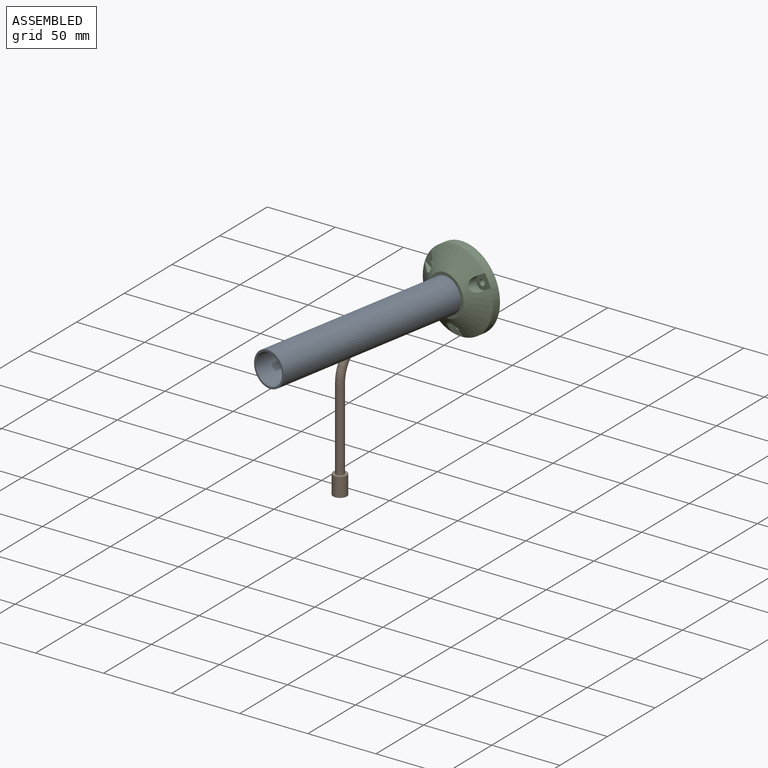
[diagram: assembled view]
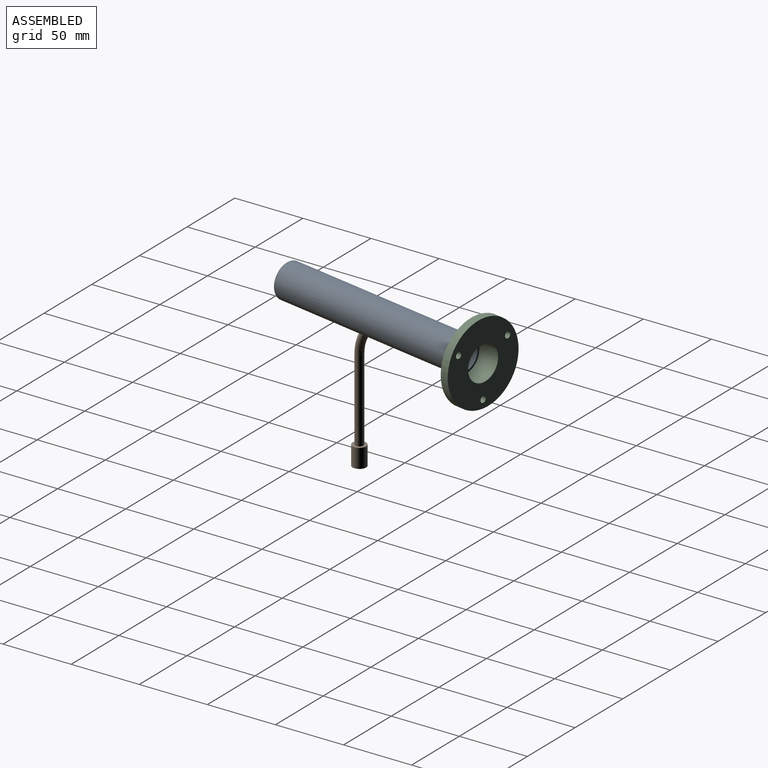
[diagram: assembled view, second angle]
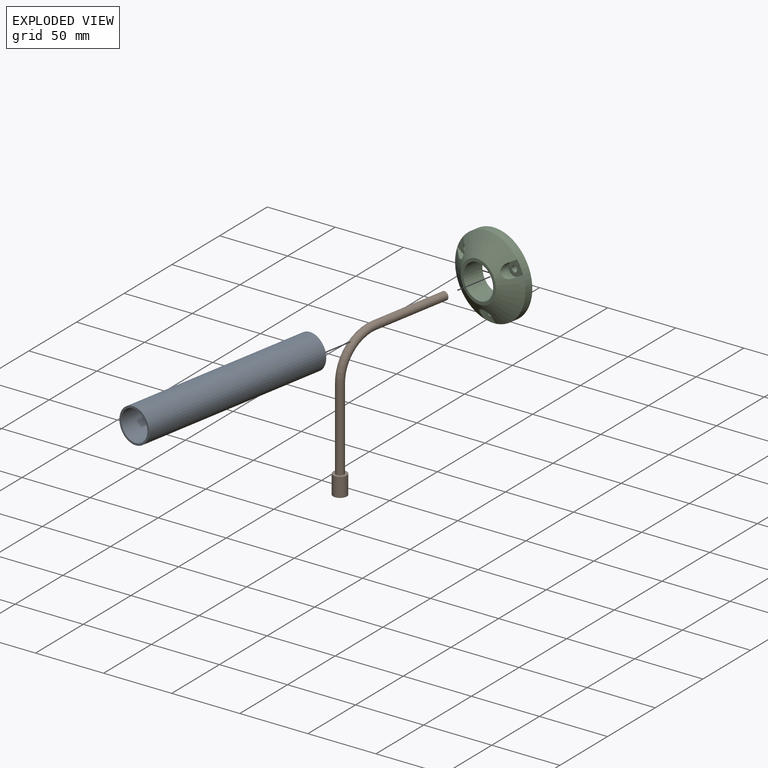
[diagram: exploded view]
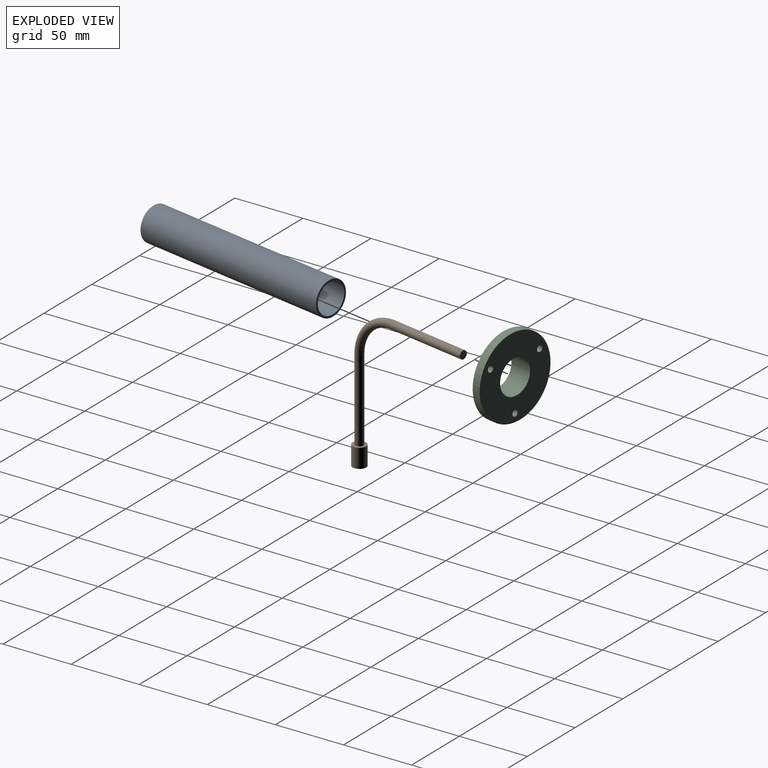
[diagram: exploded view, second angle]
ASSEMBLY  parts=3 mates=2
PART A: 8 faces, bbox 25.4x25.4x150 mm
  f0: cylinder r=11.2mm len=150mm, axis (0,0,-1), area 10371.4mm2, adj f2,f3,f4,f5,f6,f7
  f1: cylinder r=12.7mm len=150mm, axis (0,0,-1), area 11786.5mm2, adj f2,f3,f4,f5,f6,f7
  f2: plane 25.4x25.4mm, normal (0,0,1), area 112.6mm2, adj f0,f1
  f3: plane 25.4x25.4mm, normal (0,0,-1), area 112.6mm2, adj f0,f1
  f4: plane 10x1.65mm, normal (1,0,0), area 16.5mm2, adj f0,f1,f5,f7
  f5: cylinder r=5mm len=10mm, axis (0,-1,0), area 24.7mm2, adj f0,f1,f4,f6
  f6: plane 10x1.65mm, normal (-1,0,0), area 16.5mm2, adj f0,f1,f5,f7
  f7: cylinder r=5mm len=10mm, axis (0,-1,0), area 24.7mm2, adj f0,f1,f4,f6
PART B: 7 faces, bbox 94.4x10x108.4 mm
  f0: plane 10x10mm, normal (0,0,-1), area 78.5mm2, adj f3
  f1: cylinder r=3mm len=60mm, axis (0,0,-1), area 1131mm2, adj f2,f4
  f2: plane 10x10mm, normal (0,0,1), area 50.3mm2, adj f1,f3
  f3: cylinder r=5mm len=14mm, axis (0,0,-1), area 439.8mm2, adj f0,f2
  f4: torus R=28.82mm, axis (0,-1,0), area 853.3mm2, adj f1,f5
  f5: cylinder r=3mm len=60mm, axis (-1,0,0), area 1131mm2, adj f4,f6
  f6: plane 6x6mm, normal (1,0,0), area 28.3mm2, adj f5
PART C: 21 faces, bbox 60.1x16.1x60.1 mm
  f0: cylinder r=2.25mm len=6mm, axis (0,-1,0), area 84.8mm2, adj f4,f14
  f1: plane 4.94x3.76mm, normal (-0.5,0,-0.87), area 10.2mm2, adj f3,f4,f10
  f2: plane 4.94x3.76mm, normal (0.5,0,0.87), area 10.2mm2, adj f3,f4,f10
  f3: cylinder r=5mm len=9.33mm, axis (0,-1,0), area 93.2mm2, adj f1,f2,f4,f10
  f4: plane 12.33x12.12mm, normal (0,-1,0), area 82mm2, adj f0,f1,f2,f3,f12
  f5: cylinder r=2.25mm len=6mm, axis (0,-1,0), area 84.8mm2, adj f9,f14
  f6: plane 4.94x3.76mm, normal (-0.5,0,0.87), area 10.2mm2, adj f8,f9,f10
  f7: plane 4.94x3.76mm, normal (0.5,0,-0.87), area 10.2mm2, adj f8,f9,f11
  f8: cylinder r=5mm len=9.33mm, axis (0,-1,0), area 93.2mm2, adj f6,f7,f9,f10
  f9: plane 12.33x12.12mm, normal (0,-1,0), area 82mm2, adj f5,f6,f7,f8,f12
  f10: cone r=15mm half-angle=56.3deg, axis (0,1,0), area 2190.8mm2, adj f1,f2,f3,f6,f8,f11,f12,f13
  f11: cone r=15mm half-angle=56.3deg, axis (0,1,0), area 3.5mm2, adj f7,f10,f12
  f12: cylinder r=30mm len=60mm, axis (0,1,0), area 1131mm2, adj f4,f9,f10,f11,f14,f19
  f13: plane 30x30mm, normal (0,-1,0), area 200.2mm2, adj f10,f15
  f14: plane 60x60mm, normal (0,1,0), area 2273mm2, adj f0,f5,f12,f15,f20
  f15: cylinder r=12.7mm len=25.4mm, axis (0,-1,0), area 1276.7mm2, adj f13,f14
  f16: plane 5.69x3.76mm, normal (1,0,0), area 10.2mm2, adj f10,f18,f19
  f17: plane 5.69x3.76mm, normal (-1,0,0), area 10.2mm2, adj f10,f18,f19
  f18: cylinder r=5mm len=10mm, axis (0,-1,0), area 93.2mm2, adj f10,f16,f17,f19
  f19: plane 11x10mm, normal (0,-1,0), area 82mm2, adj f12,f16,f17,f18,f20
  f20: cylinder r=2.25mm len=6mm, axis (0,-1,0), area 84.8mm2, adj f14,f19
PLACE A rot(axis=(-0.99,0.09,-0.09),90.5deg) t=(-35.96,-175.32,0)mm fixed
PLACE B rot(axis=(0,0,1),79.7deg) t=(-25.23,-116.07,-102.82)mm
PLACE C rot(axis=(0,0,-1),10.3deg) t=(-6.37,-11.98,0)mm
MATE slider B.f5 <-> A.f0  axis (-0.18,-0.98,0) through (-9.39,-28.68,0)mm
MATE revolute A.f0 <-> C.f15  axis (-0.18,-0.98,0) through (-9.22,-27.72,0)mm
